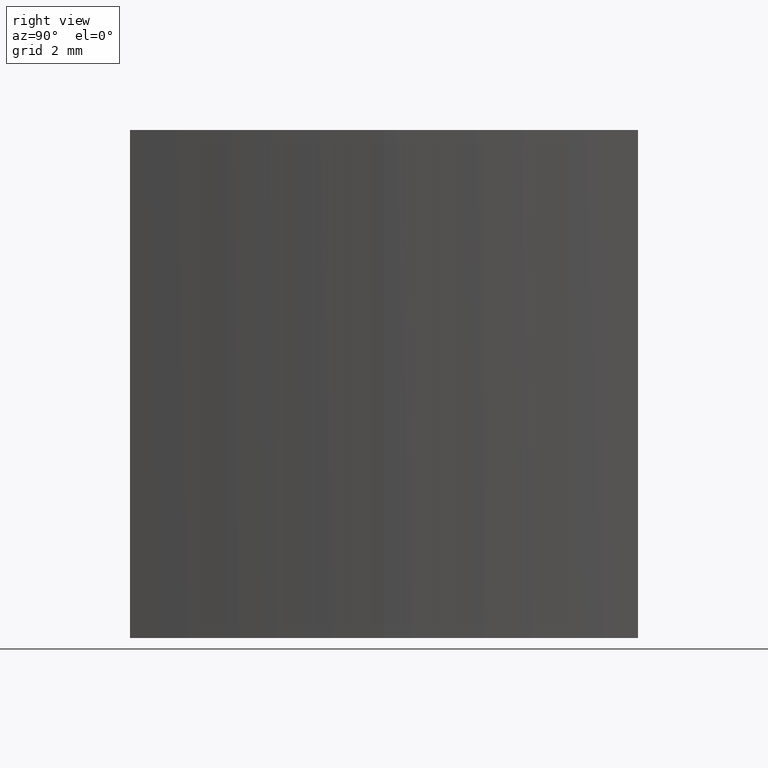
[diagram: clean part render]
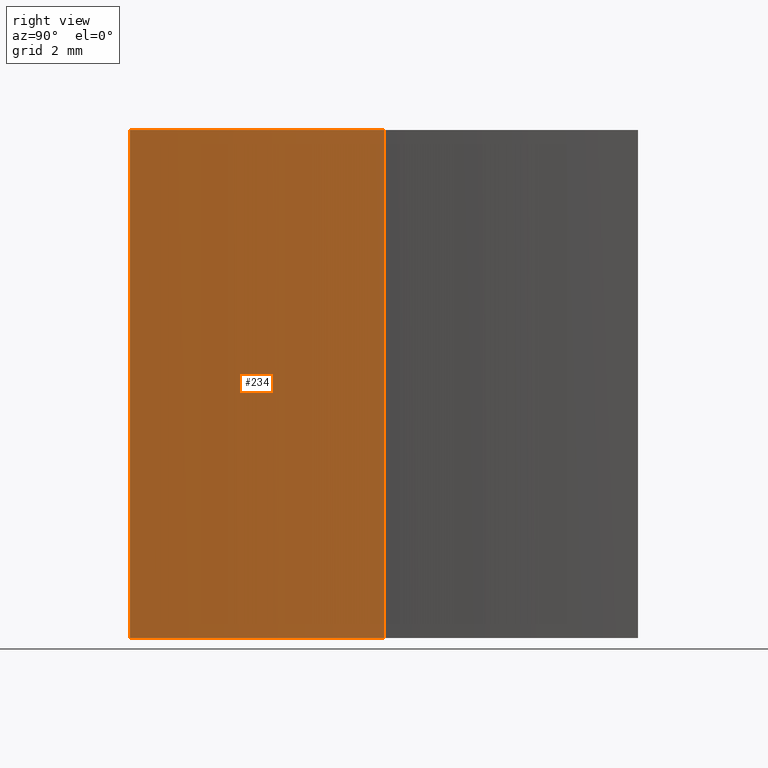
[diagram: same view with one face highlighted and labeled with its STEP entity id]
A machine part, right view. The second image highlights one B-rep face of the part: STEP entity #234.
In plain terms, the highlighted cylindrical surface (partial cylindrical patch) has radius 50 mm, axis along (-0, -0, -1).
Its self-contained STEP definition (entity closure, byte-faithful):
#21 = DIRECTION ( 'NONE',  ( -0.0000000000000000000, -0.0000000000000000000, -1.000000000000000000 ) ) ;
#32 = EDGE_CURVE ( 'NONE', #199, #161, #126, .T. ) ;
#43 = EDGE_LOOP ( 'NONE', ( #236, #100, #211, #209 ) ) ;
#44 = AXIS2_PLACEMENT_3D ( 'NONE', #56, #89, #167 ) ;
#45 = DIRECTION ( 'NONE',  ( 1.000000000000000000, 0.0000000000000000000, 0.0000000000000000000 ) ) ;
#48 = DIRECTION ( 'NONE',  ( -0.0000000000000000000, -0.0000000000000000000, -1.000000000000000000 ) ) ;
#49 = CARTESIAN_POINT ( 'NONE',  ( 60.54632760196703600, 34.68901056168623100, 0.0000000000000000000 ) ) ;
#56 = CARTESIAN_POINT ( 'NONE',  ( 110.5463276019670400, 34.68901056168623100, 12.50000000000000000 ) ) ;
#58 = CYLINDRICAL_SURFACE ( 'NONE', #74, 49.99999999999999300 ) ;
#74 = AXIS2_PLACEMENT_3D ( 'NONE', #185, #21, #108 ) ;
#78 = FACE_OUTER_BOUND ( 'NONE', #43, .T. ) ;
#80 = VECTOR ( 'NONE', #215, 1000.000000000000000 ) ;
#82 = CARTESIAN_POINT ( 'NONE',  ( 60.93849051950595500, 28.43901056168625600, 12.50000000000000000 ) ) ;
#83 = CARTESIAN_POINT ( 'NONE',  ( 60.93849051950595500, 28.43901056168625600, 0.0000000000000000000 ) ) ;
#86 = LINE ( 'NONE', #139, #228 ) ;
#89 = DIRECTION ( 'NONE',  ( -0.0000000000000000000, -0.0000000000000000000, -1.000000000000000000 ) ) ;
#92 = VERTEX_POINT ( 'NONE', #120 ) ;
#100 = ORIENTED_EDGE ( 'NONE', *, *, #229, .F. ) ;
#101 = CARTESIAN_POINT ( 'NONE',  ( 60.93849051950595500, 28.43901056168625600, 12.50000000000000000 ) ) ;
#108 = DIRECTION ( 'NONE',  ( -1.000000000000000000, 0.0000000000000000000, 0.0000000000000000000 ) ) ;
#111 = VERTEX_POINT ( 'NONE', #101 ) ;
#120 = CARTESIAN_POINT ( 'NONE',  ( 60.54632760196703600, 34.68901056168623100, 12.50000000000000000 ) ) ;
#126 = CIRCLE ( 'NONE', #226, 49.99999999999998600 ) ;
#128 = LINE ( 'NONE', #82, #80 ) ;
#139 = CARTESIAN_POINT ( 'NONE',  ( 60.54632760196703600, 34.68901056168623100, 12.50000000000000000 ) ) ;
#157 = CARTESIAN_POINT ( 'NONE',  ( 110.5463276019670400, 34.68901056168623100, 0.0000000000000000000 ) ) ;
#161 = VERTEX_POINT ( 'NONE', #49 ) ;
#167 = DIRECTION ( 'NONE',  ( 1.000000000000000000, 0.0000000000000000000, 0.0000000000000000000 ) ) ;
#185 = CARTESIAN_POINT ( 'NONE',  ( 110.5463276019670400, 34.68901056168623100, 12.50000000000000000 ) ) ;
#191 = EDGE_CURVE ( 'NONE', #92, #161, #86, .T. ) ;
#193 = EDGE_CURVE ( 'NONE', #111, #199, #128, .T. ) ;
#197 = DIRECTION ( 'NONE',  ( -0.0000000000000000000, -0.0000000000000000000, -1.000000000000000000 ) ) ;
#199 = VERTEX_POINT ( 'NONE', #83 ) ;
#209 = ORIENTED_EDGE ( 'NONE', *, *, #32, .T. ) ;
#211 = ORIENTED_EDGE ( 'NONE', *, *, #193, .T. ) ;
#212 = CIRCLE ( 'NONE', #44, 49.99999999999998600 ) ;
#215 = DIRECTION ( 'NONE',  ( -0.0000000000000000000, -0.0000000000000000000, -1.000000000000000000 ) ) ;
#226 = AXIS2_PLACEMENT_3D ( 'NONE', #157, #48, #45 ) ;
#228 = VECTOR ( 'NONE', #197, 1000.000000000000000 ) ;
#229 = EDGE_CURVE ( 'NONE', #111, #92, #212, .T. ) ;
#234 = ADVANCED_FACE ( 'NONE', ( #78 ), #58, .F. ) ;
#236 = ORIENTED_EDGE ( 'NONE', *, *, #191, .F. ) ;